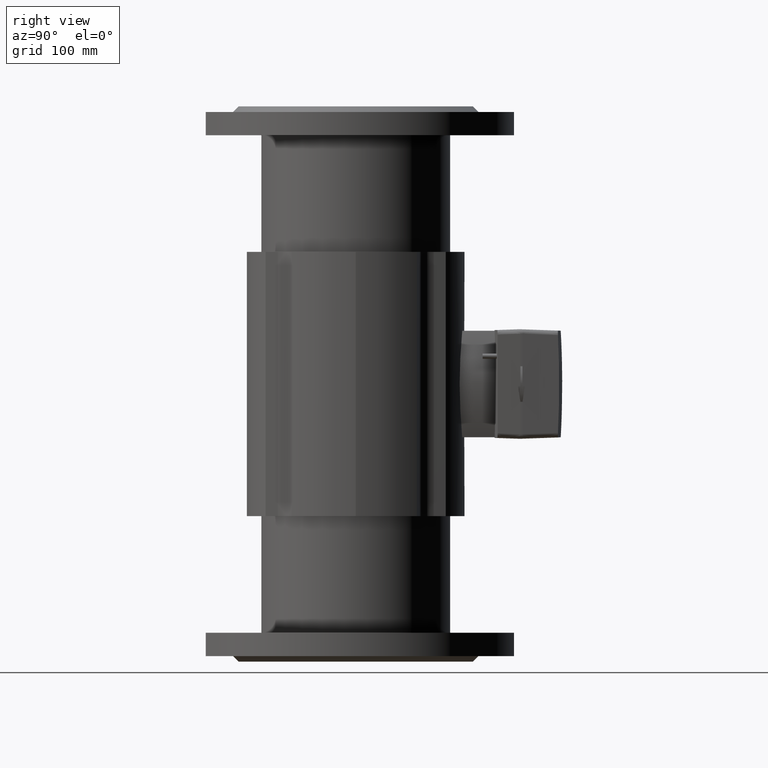
[diagram: clean part render]
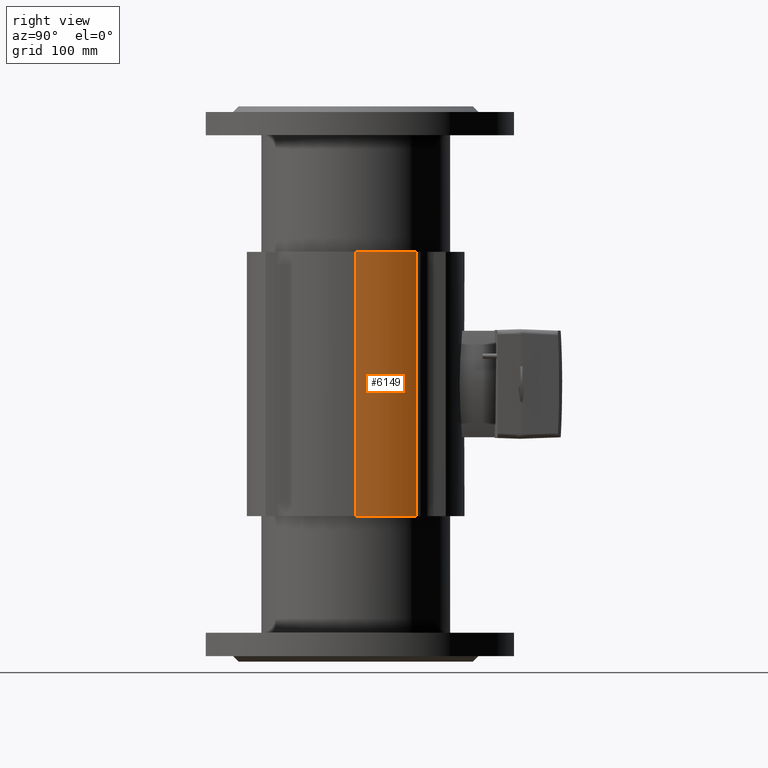
[diagram: same view with one face highlighted and labeled with its STEP entity id]
A machine part, right view. The second image highlights one B-rep face of the part: STEP entity #6149.
In plain terms, the highlighted cylindrical surface (partial cylindrical patch) has radius 98 mm, axis along (0, 0, 1).
Its self-contained STEP definition (entity closure, byte-faithful):
#891 = EDGE_CURVE ( 'NONE', #5831, #1612, #3247, .T. ) ;
#1223 = CIRCLE ( 'NONE', #3757, 97.99999999999997158 ) ;
#1271 = VERTEX_POINT ( 'NONE', #1365 ) ;
#1299 = ORIENTED_EDGE ( 'NONE', *, *, #891, .F. ) ;
#1365 = CARTESIAN_POINT ( 'NONE',  ( 97.99999999999997158, 0.0000000000000000000, 119.0000000000000000 ) ) ;
#1612 = VERTEX_POINT ( 'NONE', #4972 ) ;
#1615 = FACE_OUTER_BOUND ( 'NONE', #2848, .T. ) ;
#1674 = DIRECTION ( 'NONE',  ( -0.0000000000000000000, -0.0000000000000000000, 1.000000000000000000 ) ) ;
#1854 = VECTOR ( 'NONE', #6263, 1000.000000000000000 ) ;
#1855 = DIRECTION ( 'NONE',  ( 0.0000000000000000000, 0.0000000000000000000, -1.000000000000000000 ) ) ;
#1968 = ORIENTED_EDGE ( 'NONE', *, *, #3984, .F. ) ;
#2024 = EDGE_CURVE ( 'NONE', #5831, #5843, #4628, .T. ) ;
#2264 = EDGE_CURVE ( 'NONE', #5843, #1271, #1223, .T. ) ;
#2447 = CARTESIAN_POINT ( 'NONE',  ( 81.07367391348213914, 55.05505788000190392, -119.0000000000000000 ) ) ;
#2456 = DIRECTION ( 'NONE',  ( -1.000000000000000000, 0.0000000000000000000, 0.0000000000000000000 ) ) ;
#2628 = CARTESIAN_POINT ( 'NONE',  ( 81.07367391348213914, 55.05505788000190392, -119.0000000000000000 ) ) ;
#2727 = AXIS2_PLACEMENT_3D ( 'NONE', #4986, #4424, #2456 ) ;
#2848 = EDGE_LOOP ( 'NONE', ( #1968, #1299, #6580, #5459 ) ) ;
#3099 = DIRECTION ( 'NONE',  ( 1.000000000000000000, 0.0000000000000000000, 0.0000000000000000000 ) ) ;
#3247 = CIRCLE ( 'NONE', #2727, 97.99999999999997158 ) ;
#3266 = CARTESIAN_POINT ( 'NONE',  ( 97.99999999999997158, 0.0000000000000000000, -119.0000000000000000 ) ) ;
#3544 = CARTESIAN_POINT ( 'NONE',  ( 81.07367391348213914, 55.05505788000190392, 119.0000000000000000 ) ) ;
#3625 = AXIS2_PLACEMENT_3D ( 'NONE', #4113, #6155, #3099 ) ;
#3664 = CYLINDRICAL_SURFACE ( 'NONE', #3625, 97.99999999999997158 ) ;
#3757 = AXIS2_PLACEMENT_3D ( 'NONE', #5485, #1855, #4523 ) ;
#3984 = EDGE_CURVE ( 'NONE', #1612, #1271, #5714, .T. ) ;
#4113 = CARTESIAN_POINT ( 'NONE',  ( 0.0000000000000000000, 0.0000000000000000000, -119.0000000000000000 ) ) ;
#4424 = DIRECTION ( 'NONE',  ( 0.0000000000000000000, 0.0000000000000000000, -1.000000000000000000 ) ) ;
#4523 = DIRECTION ( 'NONE',  ( -1.000000000000000000, 0.0000000000000000000, 0.0000000000000000000 ) ) ;
#4628 = LINE ( 'NONE', #2628, #5386 ) ;
#4972 = CARTESIAN_POINT ( 'NONE',  ( 97.99999999999997158, 0.0000000000000000000, -119.0000000000000000 ) ) ;
#4986 = CARTESIAN_POINT ( 'NONE',  ( 0.0000000000000000000, 0.0000000000000000000, -119.0000000000000000 ) ) ;
#5386 = VECTOR ( 'NONE', #1674, 1000.000000000000000 ) ;
#5459 = ORIENTED_EDGE ( 'NONE', *, *, #2264, .T. ) ;
#5485 = CARTESIAN_POINT ( 'NONE',  ( 0.0000000000000000000, 0.0000000000000000000, 119.0000000000000000 ) ) ;
#5714 = LINE ( 'NONE', #3266, #1854 ) ;
#5831 = VERTEX_POINT ( 'NONE', #2447 ) ;
#5843 = VERTEX_POINT ( 'NONE', #3544 ) ;
#6149 = ADVANCED_FACE ( 'NONE', ( #1615 ), #3664, .T. ) ;
#6155 = DIRECTION ( 'NONE',  ( -0.0000000000000000000, -0.0000000000000000000, 1.000000000000000000 ) ) ;
#6263 = DIRECTION ( 'NONE',  ( -0.0000000000000000000, -0.0000000000000000000, 1.000000000000000000 ) ) ;
#6580 = ORIENTED_EDGE ( 'NONE', *, *, #2024, .T. ) ;